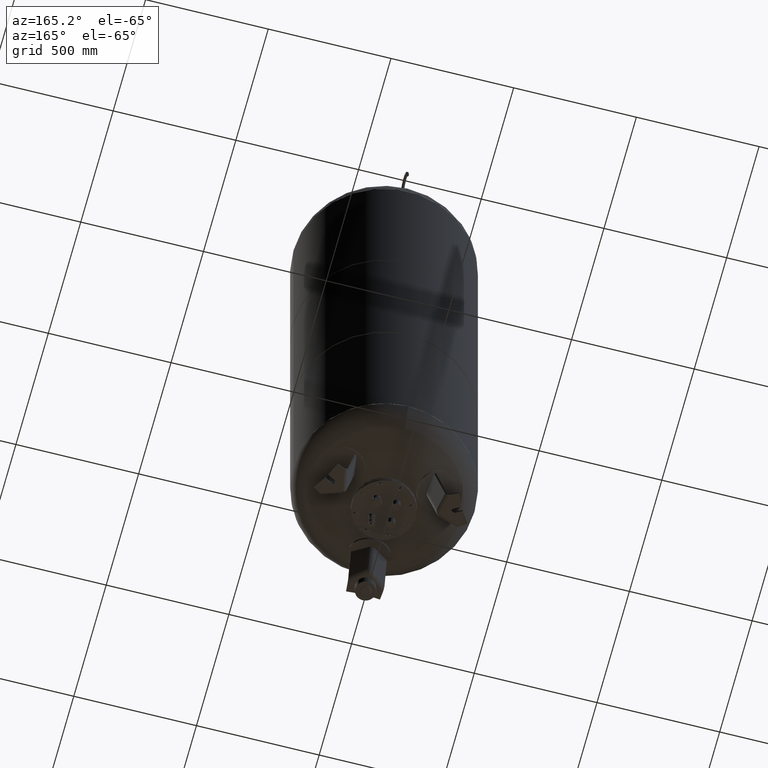
[diagram: clean part render]
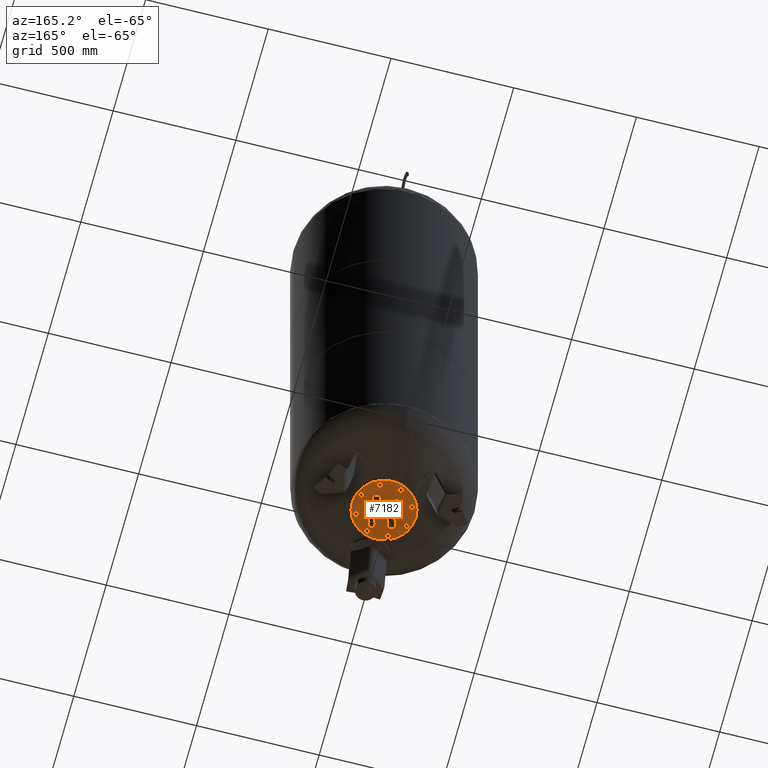
[diagram: same view with one face highlighted and labeled with its STEP entity id]
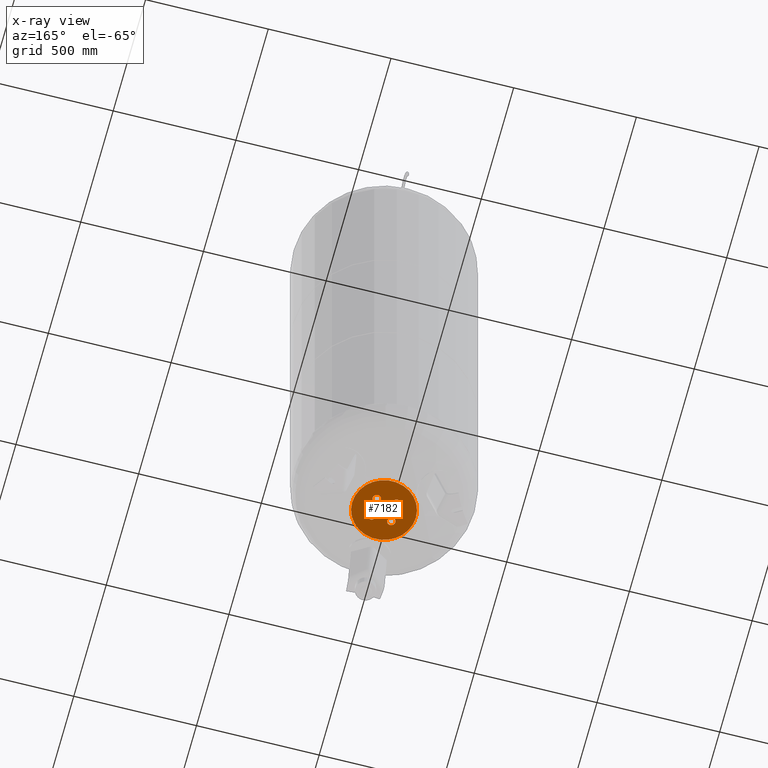
[diagram: x-ray of the same camera — body ghosted, the highlighted face saturated]
A machine part, auxiliary view. The second image highlights one B-rep face of the part: STEP entity #7182.
The next image is the same camera in x-ray: the body ghosted, the highlighted face saturated — about 0% of this face is hidden behind the body in this view.
In plain terms, the highlighted planar face has unit normal (0, 0, -1).
Its self-contained STEP definition (entity closure, byte-faithful):
#6282=CARTESIAN_POINT('',(130.0,-6.245699E-015,167.0));
#6283=VERTEX_POINT('',#6282);
#6292=CARTESIAN_POINT('',(-130.0,9.674184E-015,167.0));
#6293=VERTEX_POINT('',#6292);
#6294=CARTESIAN_POINT('',(4.874219E-031,-6.245699E-015,167.0));
#6295=DIRECTION('',(0.0,0.0,-1.0));
#6296=DIRECTION('',(1.0,0.0,0.0));
#6297=AXIS2_PLACEMENT_3D('',#6294,#6295,#6296);
#6298=CIRCLE('',#6297,130.0);
#6299=EDGE_CURVE('',#6293,#6283,#6298,.T.);
#6613=CARTESIAN_POINT('',(23.101533137039944,39.951533137039924,167.0));
#6614=VERTEX_POINT('',#6613);
#6630=CARTESIAN_POINT('',(56.801533137039954,39.951533137039924,167.0));
#6631=VERTEX_POINT('',#6630);
#6638=CARTESIAN_POINT('',(39.951533137039945,39.951533137039924,167.0));
#6639=DIRECTION('',(0.0,0.0,1.0));
#6640=DIRECTION('',(-1.0,0.0,0.0));
#6641=AXIS2_PLACEMENT_3D('',#6638,#6639,#6640);
#6642=CIRCLE('',#6641,16.850000000000001);
#6643=EDGE_CURVE('',#6614,#6631,#6642,.T.);
#6655=CARTESIAN_POINT('',(-56.801533137039932,39.951533137039938,167.0));
#6656=VERTEX_POINT('',#6655);
#6672=CARTESIAN_POINT('',(-23.101533137039922,39.951533137039938,167.0));
#6673=VERTEX_POINT('',#6672);
#6680=CARTESIAN_POINT('',(-39.951533137039931,39.951533137039938,167.0));
#6681=DIRECTION('',(0.0,0.0,1.0));
#6682=DIRECTION('',(-1.0,0.0,0.0));
#6683=AXIS2_PLACEMENT_3D('',#6680,#6681,#6682);
#6684=CIRCLE('',#6683,16.850000000000001);
#6685=EDGE_CURVE('',#6656,#6673,#6684,.T.);
#6697=CARTESIAN_POINT('',(-56.801533137039947,-39.951533137039938,167.0));
#6698=VERTEX_POINT('',#6697);
#6714=CARTESIAN_POINT('',(-23.101533137039940,-39.951533137039938,167.0));
#6715=VERTEX_POINT('',#6714);
#6722=CARTESIAN_POINT('',(-39.951533137039945,-39.951533137039938,167.0));
#6723=DIRECTION('',(0.0,0.0,1.0));
#6724=DIRECTION('',(-1.0,0.0,0.0));
#6725=AXIS2_PLACEMENT_3D('',#6722,#6723,#6724);
#6726=CIRCLE('',#6725,16.850000000000001);
#6727=EDGE_CURVE('',#6698,#6715,#6726,.T.);
#6739=CARTESIAN_POINT('',(26.501533137039932,-39.951533137039952,167.0));
#6740=VERTEX_POINT('',#6739);
#6756=CARTESIAN_POINT('',(53.401533137039927,-39.951533137039952,167.0));
#6757=VERTEX_POINT('',#6756);
#6764=CARTESIAN_POINT('',(39.951533137039931,-39.951533137039952,167.0));
#6765=DIRECTION('',(0.0,0.0,1.0));
#6766=DIRECTION('',(-1.0,0.0,0.0));
#6767=AXIS2_PLACEMENT_3D('',#6764,#6765,#6766);
#6768=CIRCLE('',#6767,13.449999999999999);
#6769=EDGE_CURVE('',#6740,#6757,#6768,.T.);
#6796=CARTESIAN_POINT('',(39.951533137039931,-39.951533137039952,167.0));
#6797=DIRECTION('',(0.0,0.0,1.0));
#6798=DIRECTION('',(-1.0,0.0,0.0));
#6799=AXIS2_PLACEMENT_3D('',#6796,#6797,#6798);
#6800=CIRCLE('',#6799,13.449999999999999);
#6801=EDGE_CURVE('',#6757,#6740,#6800,.T.);
#6814=CARTESIAN_POINT('',(-39.951533137039945,-39.951533137039938,167.0));
#6815=DIRECTION('',(0.0,0.0,1.0));
#6816=DIRECTION('',(-1.0,0.0,0.0));
#6817=AXIS2_PLACEMENT_3D('',#6814,#6815,#6816);
#6818=CIRCLE('',#6817,16.850000000000001);
#6819=EDGE_CURVE('',#6715,#6698,#6818,.T.);
#6848=CARTESIAN_POINT('',(-39.951533137039931,39.951533137039938,167.0));
#6849=DIRECTION('',(0.0,0.0,1.0));
#6850=DIRECTION('',(-1.0,0.0,0.0));
#6851=AXIS2_PLACEMENT_3D('',#6848,#6849,#6850);
#6852=CIRCLE('',#6851,16.850000000000001);
#6853=EDGE_CURVE('',#6673,#6656,#6852,.T.);
#6882=CARTESIAN_POINT('',(39.951533137039945,39.951533137039924,167.0));
#6883=DIRECTION('',(0.0,0.0,1.0));
#6884=DIRECTION('',(-1.0,0.0,0.0));
#6885=AXIS2_PLACEMENT_3D('',#6882,#6883,#6884);
#6886=CIRCLE('',#6885,16.850000000000001);
#6887=EDGE_CURVE('',#6631,#6614,#6886,.T.);
#7147=CARTESIAN_POINT('',(4.874219E-031,-6.245699E-015,167.0));
#7148=DIRECTION('',(0.0,0.0,-1.0));
#7149=DIRECTION('',(1.0,0.0,0.0));
#7150=AXIS2_PLACEMENT_3D('',#7147,#7148,#7149);
#7151=CIRCLE('',#7150,130.0);
#7152=EDGE_CURVE('',#6283,#6293,#7151,.T.);
#7157=CARTESIAN_POINT('',(65.0,-6.245699E-015,167.0));
#7158=DIRECTION('',(0.0,0.0,-1.0));
#7159=DIRECTION('',(0.0,1.0,0.0));
#7160=AXIS2_PLACEMENT_3D('',#7157,#7158,#7159);
#7161=PLANE('',#7160);
#7162=ORIENTED_EDGE('',*,*,#7152,.T.);
#7163=ORIENTED_EDGE('',*,*,#6299,.T.);
#7164=EDGE_LOOP('',(#7162,#7163));
#7165=FACE_OUTER_BOUND('',#7164,.T.);
#7166=ORIENTED_EDGE('',*,*,#6801,.T.);
#7167=ORIENTED_EDGE('',*,*,#6769,.T.);
#7168=EDGE_LOOP('',(#7166,#7167));
#7169=FACE_BOUND('',#7168,.T.);
#7170=ORIENTED_EDGE('',*,*,#6819,.T.);
#7171=ORIENTED_EDGE('',*,*,#6727,.T.);
#7172=EDGE_LOOP('',(#7170,#7171));
#7173=FACE_BOUND('',#7172,.T.);
#7174=ORIENTED_EDGE('',*,*,#6853,.T.);
#7175=ORIENTED_EDGE('',*,*,#6685,.T.);
#7176=EDGE_LOOP('',(#7174,#7175));
#7177=FACE_BOUND('',#7176,.T.);
#7178=ORIENTED_EDGE('',*,*,#6887,.T.);
#7179=ORIENTED_EDGE('',*,*,#6643,.T.);
#7180=EDGE_LOOP('',(#7178,#7179));
#7181=FACE_BOUND('',#7180,.T.);
#7182=ADVANCED_FACE('',(#7165,#7169,#7173,#7177,#7181),#7161,.T.);